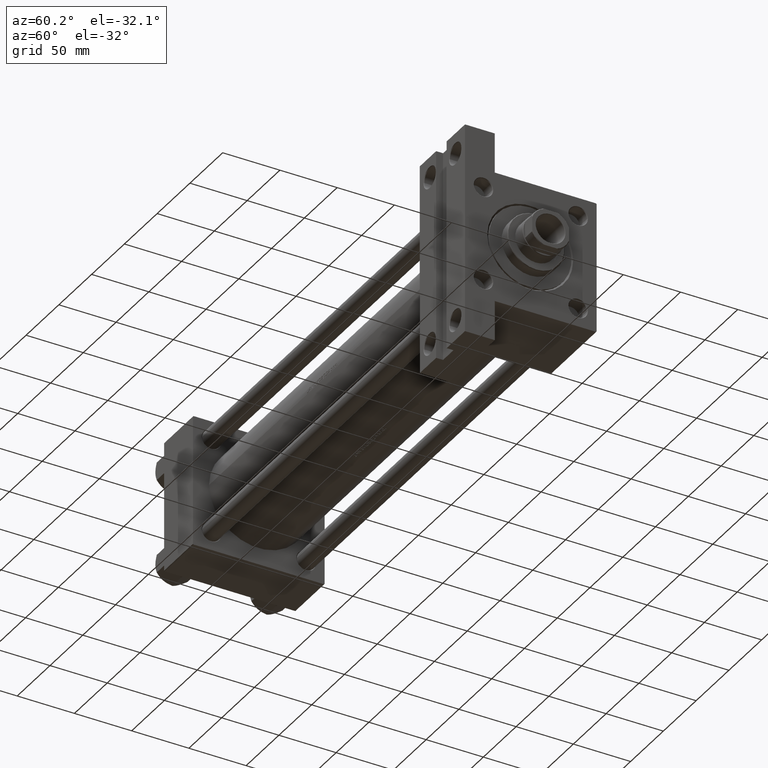
[diagram: clean part render]
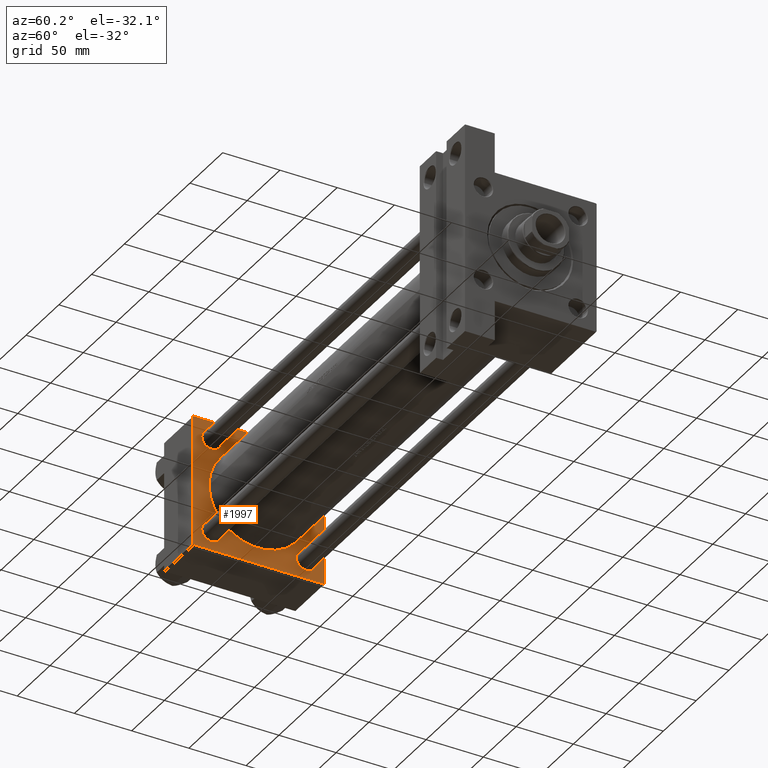
[diagram: same view with one face highlighted and labeled with its STEP entity id]
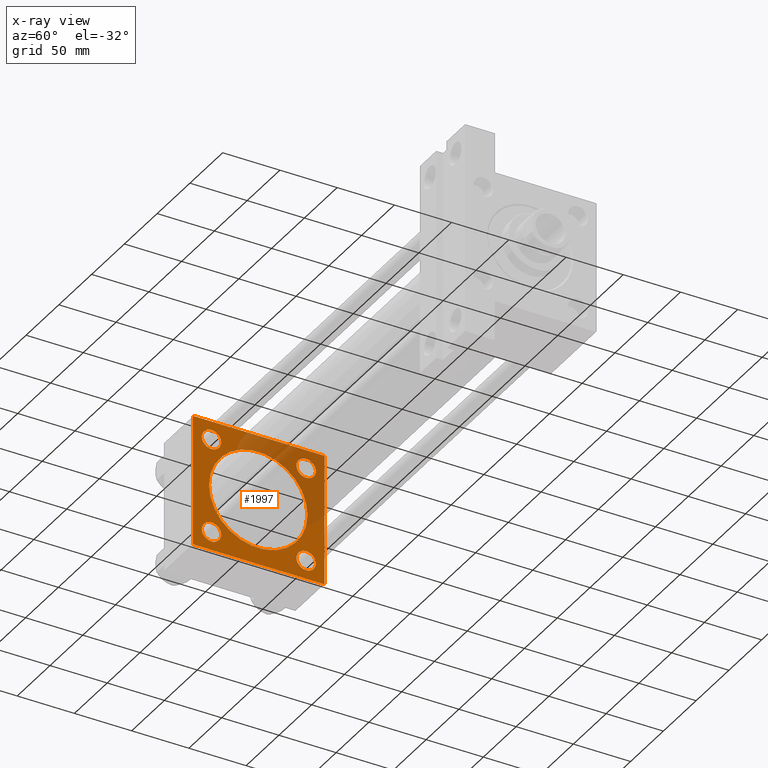
[diagram: x-ray of the same camera — body ghosted, the highlighted face saturated]
A machine part, auxiliary view. The second image highlights one B-rep face of the part: STEP entity #1997.
The next image is the same camera in x-ray: the body ghosted, the highlighted face saturated — about 30% of this face is hidden behind the body in this view.
In plain terms, the highlighted planar face has unit normal (-1, 0, -0).
Its self-contained STEP definition (entity closure, byte-faithful):
#152 = DIRECTION ( 'NONE',  ( 0.000000000000000000, 0.000000000000000000, 1.000000000000000000 ) ) ;
#544 = CARTESIAN_POINT ( 'NONE',  ( 44.00000000000000000, -57.00000000000003553, 57.49999999999999289 ) ) ;
#691 = CARTESIAN_POINT ( 'NONE',  ( 44.00000000000000000, -41.34999999999998721, -41.35000000000000853 ) ) ;
#837 = DIRECTION ( 'NONE',  ( -1.000000000000000000, 0.000000000000000000, -0.000000000000000000 ) ) ;
#1300 = AXIS2_PLACEMENT_3D ( 'NONE', #691, #15061, #30369 ) ;
#1758 = EDGE_LOOP ( 'NONE', ( #21917, #41106 ) ) ;
#1842 = CARTESIAN_POINT ( 'NONE',  ( 44.00000000000000000, -57.50000000000000711, 57.00000000000000711 ) ) ;
#1997 = ADVANCED_FACE ( 'NONE', ( #3418, #25812, #31734, #29207, #16892, #42939 ), #5949, .F. ) ;
#2454 = EDGE_CURVE ( 'NONE', #10044, #42429, #21716, .T. ) ;
#3109 = CIRCLE ( 'NONE', #13990, 8.500000000000007105 ) ;
#3418 = FACE_BOUND ( 'NONE', #6673, .T. ) ;
#3778 = DIRECTION ( 'NONE',  ( -0.000000000000000000, -0.7071067811865376918, -0.7071067811865573427 ) ) ;
#3782 = VECTOR ( 'NONE', #3778, 1000.000000000000114 ) ;
#3794 = DIRECTION ( 'NONE',  ( -1.000000000000000000, 0.000000000000000000, -0.000000000000000000 ) ) ;
#3923 = EDGE_CURVE ( 'NONE', #25844, #25611, #7044, .T. ) ;
#3926 = CARTESIAN_POINT ( 'NONE',  ( 44.00000000000000000, -57.00000000000000711, -57.50000000000000711 ) ) ;
#4266 = VECTOR ( 'NONE', #44803, 1000.000000000000114 ) ;
#4499 = CARTESIAN_POINT ( 'NONE',  ( 44.00000000000000000, -57.50000000000000711, 57.00000000000000711 ) ) ;
#5335 = CIRCLE ( 'NONE', #13890, 8.500000000000007105 ) ;
#5395 = AXIS2_PLACEMENT_3D ( 'NONE', #11220, #20780, #25564 ) ;
#5624 = ORIENTED_EDGE ( 'NONE', *, *, #10407, .T. ) ;
#5632 = EDGE_CURVE ( 'NONE', #18906, #26318, #26483, .T. ) ;
#5808 = AXIS2_PLACEMENT_3D ( 'NONE', #35656, #40020, #24712 ) ;
#5949 = PLANE ( 'NONE',  #5395 ) ;
#6373 = DIRECTION ( 'NONE',  ( 0.000000000000000000, 0.000000000000000000, 1.000000000000000000 ) ) ;
#6673 = EDGE_LOOP ( 'NONE', ( #39149, #39206 ) ) ;
#7044 = CIRCLE ( 'NONE', #14018, 8.500000000000007105 ) ;
#7431 = EDGE_CURVE ( 'NONE', #18180, #31433, #9687, .T. ) ;
#7635 = CARTESIAN_POINT ( 'NONE',  ( 43.99999999999998579, 6.123233995736685917E-17, 42.50000000000000000 ) ) ;
#7677 = CARTESIAN_POINT ( 'NONE',  ( 44.00000000000000000, 57.00000000000002132, -57.49999999999999289 ) ) ;
#8736 = CARTESIAN_POINT ( 'NONE',  ( 44.00000000000000000, -57.50000000000000711, 57.49999999999999289 ) ) ;
#8865 = VECTOR ( 'NONE', #12064, 1000.000000000000114 ) ;
#9069 = ORIENTED_EDGE ( 'NONE', *, *, #11085, .T. ) ;
#9552 = ORIENTED_EDGE ( 'NONE', *, *, #7431, .F. ) ;
#9562 = EDGE_LOOP ( 'NONE', ( #29460, #40430 ) ) ;
#9592 = EDGE_CURVE ( 'NONE', #35501, #16866, #19557, .T. ) ;
#9687 = LINE ( 'NONE', #20857, #39762 ) ;
#9940 = CARTESIAN_POINT ( 'NONE',  ( 43.99999999999998579, 5.327213576290985256E-15, -43.49999999999999289 ) ) ;
#10044 = VERTEX_POINT ( 'NONE', #27166 ) ;
#10395 = DIRECTION ( 'NONE',  ( 0.000000000000000000, 0.000000000000000000, -1.000000000000000000 ) ) ;
#10407 = EDGE_CURVE ( 'NONE', #25611, #25844, #22923, .T. ) ;
#10679 = EDGE_CURVE ( 'NONE', #38199, #23524, #40015, .T. ) ;
#10770 = ORIENTED_EDGE ( 'NONE', *, *, #37521, .T. ) ;
#11085 = EDGE_CURVE ( 'NONE', #30970, #39985, #44088, .T. ) ;
#11220 = CARTESIAN_POINT ( 'NONE',  ( 44.00000000000000000, 0.000000000000000000, 0.000000000000000000 ) ) ;
#11672 = LINE ( 'NONE', #8736, #45342 ) ;
#11803 = CARTESIAN_POINT ( 'NONE',  ( 44.00000000000000000, 41.34999999999999432, -41.35000000000000142 ) ) ;
#11814 = VERTEX_POINT ( 'NONE', #1842 ) ;
#12064 = DIRECTION ( 'NONE',  ( 0.000000000000000000, -0.7071067811865573427, 0.7071067811865376918 ) ) ;
#12368 = EDGE_CURVE ( 'NONE', #11814, #30970, #11672, .T. ) ;
#12838 = DIRECTION ( 'NONE',  ( -1.000000000000000000, 0.000000000000000000, -0.000000000000000000 ) ) ;
#13187 = AXIS2_PLACEMENT_3D ( 'NONE', #42512, #12838, #42027 ) ;
#13525 = CARTESIAN_POINT ( 'NONE',  ( 44.00000000000000000, -41.34999999999998721, 49.85000000000002274 ) ) ;
#13613 = LINE ( 'NONE', #35261, #23154 ) ;
#13890 = AXIS2_PLACEMENT_3D ( 'NONE', #15954, #3794, #152 ) ;
#13990 = AXIS2_PLACEMENT_3D ( 'NONE', #32308, #31589, #28192 ) ;
#14018 = AXIS2_PLACEMENT_3D ( 'NONE', #21195, #36261, #6373 ) ;
#14061 = CARTESIAN_POINT ( 'NONE',  ( 44.00000000000000000, -57.50000000000000711, -57.00000000000000711 ) ) ;
#14387 = AXIS2_PLACEMENT_3D ( 'NONE', #11803, #837, #15200 ) ;
#14400 = ORIENTED_EDGE ( 'NONE', *, *, #12368, .T. ) ;
#15004 = EDGE_CURVE ( 'NONE', #40092, #31433, #29345, .T. ) ;
#15061 = DIRECTION ( 'NONE',  ( -1.000000000000000000, 0.000000000000000000, -0.000000000000000000 ) ) ;
#15119 = ORIENTED_EDGE ( 'NONE', *, *, #27261, .F. ) ;
#15200 = DIRECTION ( 'NONE',  ( 0.000000000000000000, 0.000000000000000000, 1.000000000000000000 ) ) ;
#15655 = DIRECTION ( 'NONE',  ( -1.000000000000000000, 0.000000000000000000, -0.000000000000000000 ) ) ;
#15678 = CARTESIAN_POINT ( 'NONE',  ( 44.00000000000000000, 41.34999999999999432, 32.84999999999999432 ) ) ;
#15954 = CARTESIAN_POINT ( 'NONE',  ( 44.00000000000000000, 41.34999999999999432, 41.35000000000000142 ) ) ;
#16138 = AXIS2_PLACEMENT_3D ( 'NONE', #27559, #15655, #23433 ) ;
#16653 = DIRECTION ( 'NONE',  ( 1.000000000000000000, -0.000000000000000000, 0.000000000000000000 ) ) ;
#16866 = VERTEX_POINT ( 'NONE', #544 ) ;
#16892 = FACE_BOUND ( 'NONE', #1758, .T. ) ;
#17441 = VECTOR ( 'NONE', #30730, 1000.000000000000000 ) ;
#17985 = CARTESIAN_POINT ( 'NONE',  ( 44.00000000000000000, 57.49999999999999289, 57.00000000000003553 ) ) ;
#18054 = DIRECTION ( 'NONE',  ( 0.000000000000000000, 0.000000000000000000, 1.000000000000000000 ) ) ;
#18180 = VERTEX_POINT ( 'NONE', #17985 ) ;
#18303 = EDGE_LOOP ( 'NONE', ( #15119, #41871, #9552, #10770, #35496, #25457, #14400, #9069 ) ) ;
#18906 = VERTEX_POINT ( 'NONE', #7635 ) ;
#19121 = LINE ( 'NONE', #38327, #8865 ) ;
#19557 = LINE ( 'NONE', #34392, #17441 ) ;
#20021 = CARTESIAN_POINT ( 'NONE',  ( 44.00000000000000000, -41.34999999999998721, -49.85000000000002274 ) ) ;
#20221 = EDGE_CURVE ( 'NONE', #20837, #39258, #46396, .T. ) ;
#20780 = DIRECTION ( 'NONE',  ( -1.000000000000000000, 0.000000000000000000, -0.000000000000000000 ) ) ;
#20837 = VERTEX_POINT ( 'NONE', #20021 ) ;
#20857 = CARTESIAN_POINT ( 'NONE',  ( 44.00000000000000000, 57.49999999999999289, 57.50000000000000711 ) ) ;
#21195 = CARTESIAN_POINT ( 'NONE',  ( 44.00000000000000000, 41.34999999999999432, -41.35000000000000142 ) ) ;
#21716 = CIRCLE ( 'NONE', #13187, 8.500000000000007105 ) ;
#21732 = CARTESIAN_POINT ( 'NONE',  ( 44.00000000000000000, 57.00000000000000711, 57.50000000000000711 ) ) ;
#21917 = ORIENTED_EDGE ( 'NONE', *, *, #5632, .F. ) ;
#22866 = EDGE_CURVE ( 'NONE', #39258, #20837, #37110, .T. ) ;
#22923 = CIRCLE ( 'NONE', #14387, 8.500000000000007105 ) ;
#23154 = VECTOR ( 'NONE', #39166, 1000.000000000000000 ) ;
#23433 = DIRECTION ( 'NONE',  ( 0.000000000000000000, 0.000000000000000000, 1.000000000000000000 ) ) ;
#23524 = VERTEX_POINT ( 'NONE', #25404 ) ;
#24366 = EDGE_CURVE ( 'NONE', #23524, #38199, #5335, .T. ) ;
#24712 = DIRECTION ( 'NONE',  ( 0.000000000000000000, 0.000000000000000000, 1.000000000000000000 ) ) ;
#25029 = CARTESIAN_POINT ( 'NONE',  ( 44.00000000000000000, 57.49999999999999289, -57.00000000000000711 ) ) ;
#25404 = CARTESIAN_POINT ( 'NONE',  ( 44.00000000000000000, 41.34999999999999432, 49.85000000000001563 ) ) ;
#25457 = ORIENTED_EDGE ( 'NONE', *, *, #43820, .T. ) ;
#25460 = CARTESIAN_POINT ( 'NONE',  ( 44.00000000000000000, 57.49999999999999289, -57.00000000000000711 ) ) ;
#25564 = DIRECTION ( 'NONE',  ( -0.000000000000000000, 0.000000000000000000, 1.000000000000000000 ) ) ;
#25611 = VERTEX_POINT ( 'NONE', #38280 ) ;
#25812 = FACE_BOUND ( 'NONE', #38463, .T. ) ;
#25844 = VERTEX_POINT ( 'NONE', #46009 ) ;
#25924 = LINE ( 'NONE', #4499, #3782 ) ;
#26318 = VERTEX_POINT ( 'NONE', #9940 ) ;
#26483 = CIRCLE ( 'NONE', #34251, 43.00000000000000000 ) ;
#27166 = CARTESIAN_POINT ( 'NONE',  ( 44.00000000000000000, -41.34999999999998721, 32.85000000000000142 ) ) ;
#27261 = EDGE_CURVE ( 'NONE', #40092, #39985, #13613, .T. ) ;
#27559 = CARTESIAN_POINT ( 'NONE',  ( 44.00000000000000000, -41.34999999999998721, -41.35000000000000853 ) ) ;
#28086 = DIRECTION ( 'NONE',  ( 0.000000000000000000, 0.000000000000000000, 1.000000000000000000 ) ) ;
#28192 = DIRECTION ( 'NONE',  ( 0.000000000000000000, 0.000000000000000000, 1.000000000000000000 ) ) ;
#29207 = FACE_BOUND ( 'NONE', #9562, .T. ) ;
#29255 = CARTESIAN_POINT ( 'NONE',  ( 44.00000000000000000, -41.34999999999998721, -32.85000000000000142 ) ) ;
#29345 = LINE ( 'NONE', #25460, #40770 ) ;
#29460 = ORIENTED_EDGE ( 'NONE', *, *, #10679, .T. ) ;
#29754 = EDGE_LOOP ( 'NONE', ( #44567, #47225 ) ) ;
#30369 = DIRECTION ( 'NONE',  ( 0.000000000000000000, 0.000000000000000000, 1.000000000000000000 ) ) ;
#30730 = DIRECTION ( 'NONE',  ( 0.000000000000000000, -1.000000000000000000, -1.206764157201257045E-16 ) ) ;
#30970 = VERTEX_POINT ( 'NONE', #14061 ) ;
#31433 = VERTEX_POINT ( 'NONE', #25029 ) ;
#31441 = EDGE_CURVE ( 'NONE', #42429, #10044, #3109, .T. ) ;
#31589 = DIRECTION ( 'NONE',  ( -1.000000000000000000, 0.000000000000000000, -0.000000000000000000 ) ) ;
#31734 = FACE_BOUND ( 'NONE', #29754, .T. ) ;
#32308 = CARTESIAN_POINT ( 'NONE',  ( 44.00000000000000000, -41.34999999999998721, 41.35000000000000853 ) ) ;
#32766 = DIRECTION ( 'NONE',  ( -0.000000000000000000, 0.7071067811865376918, 0.7071067811865573427 ) ) ;
#33358 = DIRECTION ( 'NONE',  ( 1.000000000000000000, -0.000000000000000000, 0.000000000000000000 ) ) ;
#34105 = AXIS2_PLACEMENT_3D ( 'NONE', #37251, #33358, #18054 ) ;
#34251 = AXIS2_PLACEMENT_3D ( 'NONE', #35625, #16653, #28086 ) ;
#34392 = CARTESIAN_POINT ( 'NONE',  ( 44.00000000000000000, 57.49999999999999289, 57.50000000000000711 ) ) ;
#35261 = CARTESIAN_POINT ( 'NONE',  ( 44.00000000000000000, 57.49999999999999289, -57.49999999999999289 ) ) ;
#35496 = ORIENTED_EDGE ( 'NONE', *, *, #9592, .T. ) ;
#35501 = VERTEX_POINT ( 'NONE', #21732 ) ;
#35625 = CARTESIAN_POINT ( 'NONE',  ( 43.99999999999998579, 6.123233995736685917E-17, -0.4999999999999935052 ) ) ;
#35656 = CARTESIAN_POINT ( 'NONE',  ( 44.00000000000000000, 41.34999999999999432, 41.35000000000000142 ) ) ;
#36261 = DIRECTION ( 'NONE',  ( -1.000000000000000000, 0.000000000000000000, -0.000000000000000000 ) ) ;
#36474 = CIRCLE ( 'NONE', #34105, 43.00000000000000000 ) ;
#37004 = ORIENTED_EDGE ( 'NONE', *, *, #3923, .T. ) ;
#37110 = CIRCLE ( 'NONE', #16138, 8.500000000000007105 ) ;
#37251 = CARTESIAN_POINT ( 'NONE',  ( 43.99999999999998579, 6.123233995736685917E-17, -0.4999999999999935052 ) ) ;
#37521 = EDGE_CURVE ( 'NONE', #18180, #35501, #19121, .T. ) ;
#38199 = VERTEX_POINT ( 'NONE', #15678 ) ;
#38280 = CARTESIAN_POINT ( 'NONE',  ( 44.00000000000000000, 41.34999999999999432, -32.84999999999999432 ) ) ;
#38327 = CARTESIAN_POINT ( 'NONE',  ( 44.00000000000000000, 57.00000000000000711, 57.50000000000000711 ) ) ;
#38463 = EDGE_LOOP ( 'NONE', ( #37004, #5624 ) ) ;
#39149 = ORIENTED_EDGE ( 'NONE', *, *, #20221, .T. ) ;
#39166 = DIRECTION ( 'NONE',  ( 0.000000000000000000, -1.000000000000000000, -1.206764157201257045E-16 ) ) ;
#39206 = ORIENTED_EDGE ( 'NONE', *, *, #22866, .T. ) ;
#39258 = VERTEX_POINT ( 'NONE', #29255 ) ;
#39762 = VECTOR ( 'NONE', #10395, 1000.000000000000000 ) ;
#39985 = VERTEX_POINT ( 'NONE', #45901 ) ;
#40015 = CIRCLE ( 'NONE', #5808, 8.500000000000007105 ) ;
#40020 = DIRECTION ( 'NONE',  ( -1.000000000000000000, 0.000000000000000000, -0.000000000000000000 ) ) ;
#40092 = VERTEX_POINT ( 'NONE', #7677 ) ;
#40430 = ORIENTED_EDGE ( 'NONE', *, *, #24366, .T. ) ;
#40770 = VECTOR ( 'NONE', #32766, 1000.000000000000114 ) ;
#41106 = ORIENTED_EDGE ( 'NONE', *, *, #45159, .F. ) ;
#41871 = ORIENTED_EDGE ( 'NONE', *, *, #15004, .T. ) ;
#42027 = DIRECTION ( 'NONE',  ( 0.000000000000000000, 0.000000000000000000, 1.000000000000000000 ) ) ;
#42429 = VERTEX_POINT ( 'NONE', #13525 ) ;
#42512 = CARTESIAN_POINT ( 'NONE',  ( 44.00000000000000000, -41.34999999999998721, 41.35000000000000853 ) ) ;
#42939 = FACE_OUTER_BOUND ( 'NONE', #18303, .T. ) ;
#43820 = EDGE_CURVE ( 'NONE', #16866, #11814, #25924, .T. ) ;
#44088 = LINE ( 'NONE', #3926, #4266 ) ;
#44567 = ORIENTED_EDGE ( 'NONE', *, *, #2454, .T. ) ;
#44803 = DIRECTION ( 'NONE',  ( 0.000000000000000000, 0.7071067811865474617, -0.7071067811865474617 ) ) ;
#45159 = EDGE_CURVE ( 'NONE', #26318, #18906, #36474, .T. ) ;
#45229 = DIRECTION ( 'NONE',  ( 0.000000000000000000, 0.000000000000000000, -1.000000000000000000 ) ) ;
#45342 = VECTOR ( 'NONE', #45229, 1000.000000000000000 ) ;
#45901 = CARTESIAN_POINT ( 'NONE',  ( 44.00000000000000000, -57.00000000000000711, -57.50000000000000711 ) ) ;
#46009 = CARTESIAN_POINT ( 'NONE',  ( 44.00000000000000000, 41.34999999999999432, -49.85000000000001563 ) ) ;
#46396 = CIRCLE ( 'NONE', #1300, 8.500000000000007105 ) ;
#47225 = ORIENTED_EDGE ( 'NONE', *, *, #31441, .T. ) ;